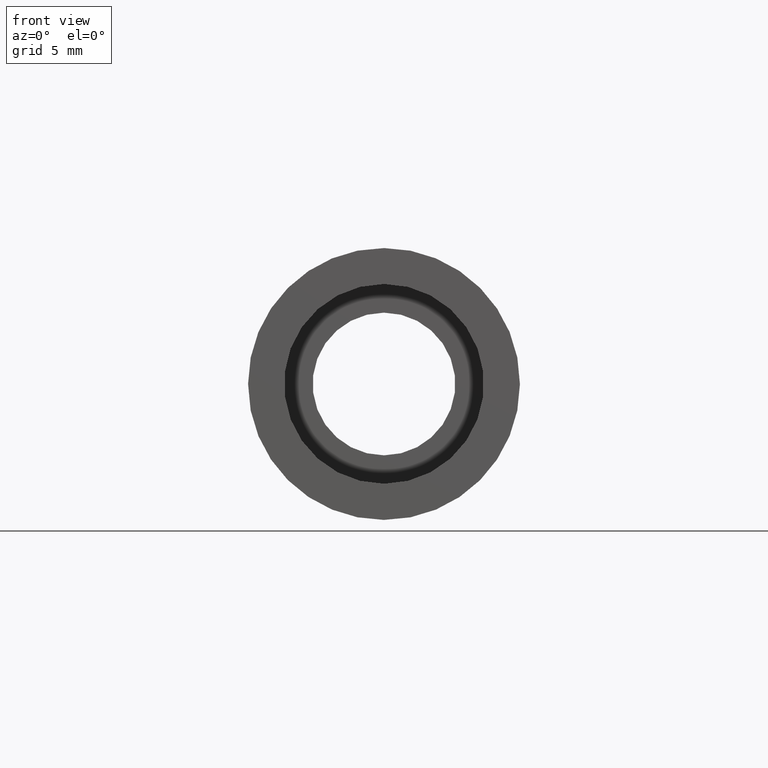
[diagram: clean part render]
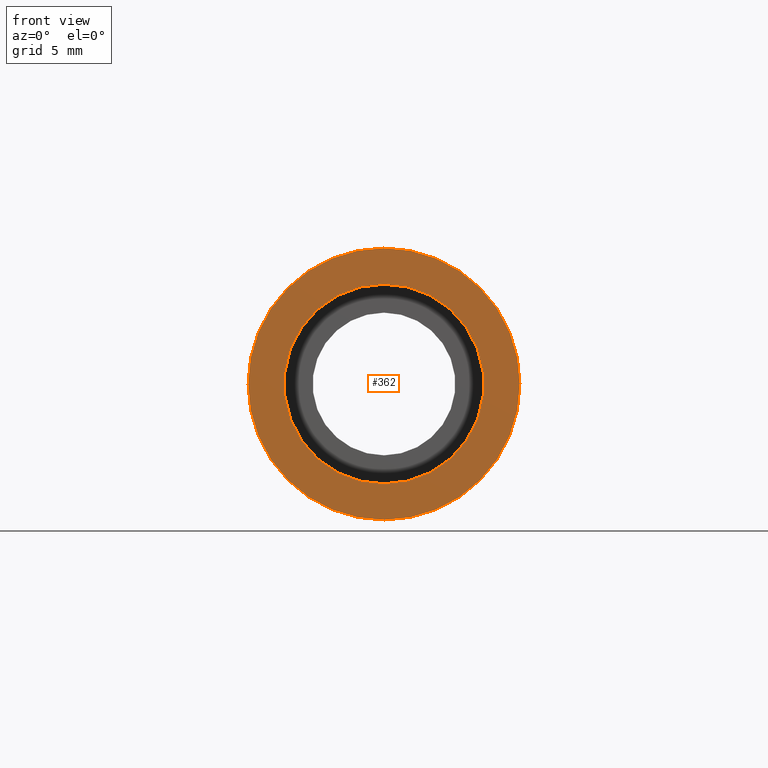
[diagram: same view with one face highlighted and labeled with its STEP entity id]
A machine part, front view. The second image highlights one B-rep face of the part: STEP entity #362.
In plain terms, the highlighted planar face has unit normal (-0, 1, 0).
Its self-contained STEP definition (entity closure, byte-faithful):
#17 = CIRCLE ( 'NONE', #482, 7.000000000000020400 ) ;
#34 = CARTESIAN_POINT ( 'NONE',  ( 0.0000000000000000000, -2.775557561562891400E-014, 9.525000000000019900 ) ) ;
#35 = AXIS2_PLACEMENT_3D ( 'NONE', #386, #241, #388 ) ;
#59 = CIRCLE ( 'NONE', #578, 7.000000000000020400 ) ;
#75 = CARTESIAN_POINT ( 'NONE',  ( 0.0000000000000000000, -2.775557561562891400E-014, 7.000000000000020400 ) ) ;
#111 = FACE_BOUND ( 'NONE', #506, .T. ) ;
#117 = CIRCLE ( 'NONE', #35, 9.525000000000019900 ) ;
#122 = DIRECTION ( 'NONE',  ( -0.0000000000000000000, 1.000000000000000000, -0.0000000000000000000 ) ) ;
#123 = DIRECTION ( 'NONE',  ( 0.0000000000000000000, 0.0000000000000000000, 1.000000000000000000 ) ) ;
#131 = AXIS2_PLACEMENT_3D ( 'NONE', #152, #307, #145 ) ;
#145 = DIRECTION ( 'NONE',  ( 0.0000000000000000000, 0.0000000000000000000, 1.000000000000000000 ) ) ;
#152 = CARTESIAN_POINT ( 'NONE',  ( 0.0000000000000000000, -2.775557561562891400E-014, 0.0000000000000000000 ) ) ;
#207 = CARTESIAN_POINT ( 'NONE',  ( 7.000000000000020400, -1.634585625335647100E-014, 0.0000000000000000000 ) ) ;
#209 = EDGE_CURVE ( 'NONE', #561, #426, #554, .T. ) ;
#221 = CARTESIAN_POINT ( 'NONE',  ( 8.572527594031496900E-016, -2.775557561562891400E-014, -7.000000000000020400 ) ) ;
#222 = ORIENTED_EDGE ( 'NONE', *, *, #209, .F. ) ;
#239 = ORIENTED_EDGE ( 'NONE', *, *, #429, .T. ) ;
#241 = DIRECTION ( 'NONE',  ( -0.0000000000000000000, 1.000000000000000000, -0.0000000000000000000 ) ) ;
#249 = EDGE_CURVE ( 'NONE', #451, #440, #17, .T. ) ;
#270 = DIRECTION ( 'NONE',  ( -0.0000000000000000000, 1.000000000000000000, 0.0000000000000000000 ) ) ;
#273 = AXIS2_PLACEMENT_3D ( 'NONE', #207, #270, #551 ) ;
#307 = DIRECTION ( 'NONE',  ( -0.0000000000000000000, 1.000000000000000000, -0.0000000000000000000 ) ) ;
#326 = CARTESIAN_POINT ( 'NONE',  ( 0.0000000000000000000, -2.775557561562891400E-014, 0.0000000000000000000 ) ) ;
#328 = EDGE_LOOP ( 'NONE', ( #222, #486 ) ) ;
#362 = ADVANCED_FACE ( 'NONE', ( #417, #111 ), #460, .F. ) ;
#386 = CARTESIAN_POINT ( 'NONE',  ( 0.0000000000000000000, -2.775557561562891400E-014, 0.0000000000000000000 ) ) ;
#388 = DIRECTION ( 'NONE',  ( 0.0000000000000000000, 0.0000000000000000000, 1.000000000000000000 ) ) ;
#417 = FACE_OUTER_BOUND ( 'NONE', #328, .T. ) ;
#422 = DIRECTION ( 'NONE',  ( 0.0000000000000000000, 0.0000000000000000000, 1.000000000000000000 ) ) ;
#426 = VERTEX_POINT ( 'NONE', #470 ) ;
#429 = EDGE_CURVE ( 'NONE', #440, #451, #59, .T. ) ;
#440 = VERTEX_POINT ( 'NONE', #75 ) ;
#451 = VERTEX_POINT ( 'NONE', #221 ) ;
#460 = PLANE ( 'NONE',  #273 ) ;
#465 = DIRECTION ( 'NONE',  ( -0.0000000000000000000, 1.000000000000000000, -0.0000000000000000000 ) ) ;
#470 = CARTESIAN_POINT ( 'NONE',  ( 1.166476076187856400E-015, -2.775557561562891400E-014, -9.525000000000019900 ) ) ;
#482 = AXIS2_PLACEMENT_3D ( 'NONE', #326, #465, #422 ) ;
#486 = ORIENTED_EDGE ( 'NONE', *, *, #528, .F. ) ;
#506 = EDGE_LOOP ( 'NONE', ( #239, #620 ) ) ;
#528 = EDGE_CURVE ( 'NONE', #426, #561, #117, .T. ) ;
#551 = DIRECTION ( 'NONE',  ( 0.0000000000000000000, 0.0000000000000000000, 1.000000000000000000 ) ) ;
#554 = CIRCLE ( 'NONE', #131, 9.525000000000019900 ) ;
#561 = VERTEX_POINT ( 'NONE', #34 ) ;
#567 = CARTESIAN_POINT ( 'NONE',  ( 0.0000000000000000000, -2.775557561562891400E-014, 0.0000000000000000000 ) ) ;
#578 = AXIS2_PLACEMENT_3D ( 'NONE', #567, #122, #123 ) ;
#620 = ORIENTED_EDGE ( 'NONE', *, *, #249, .T. ) ;